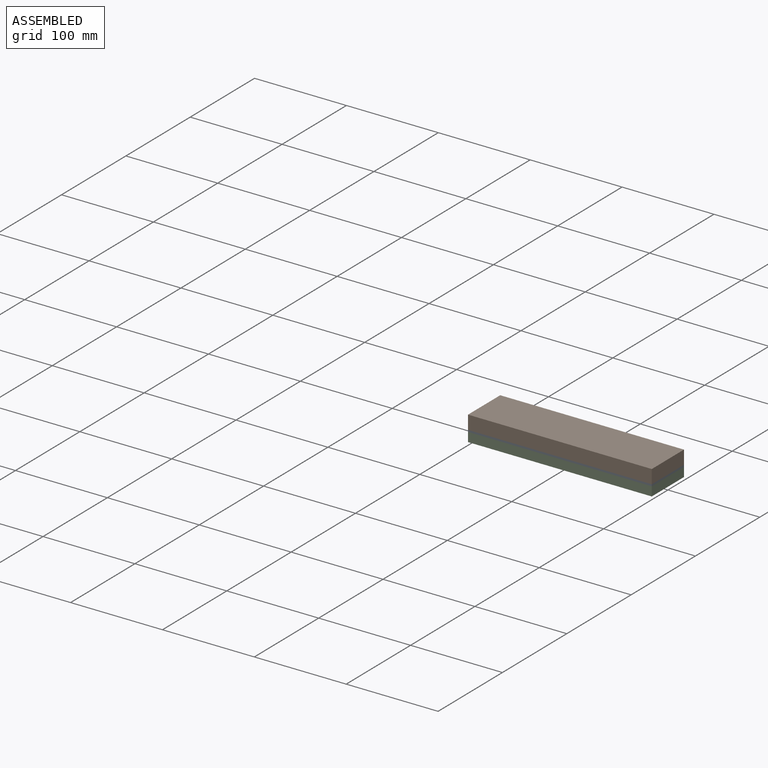
[diagram: assembled view]
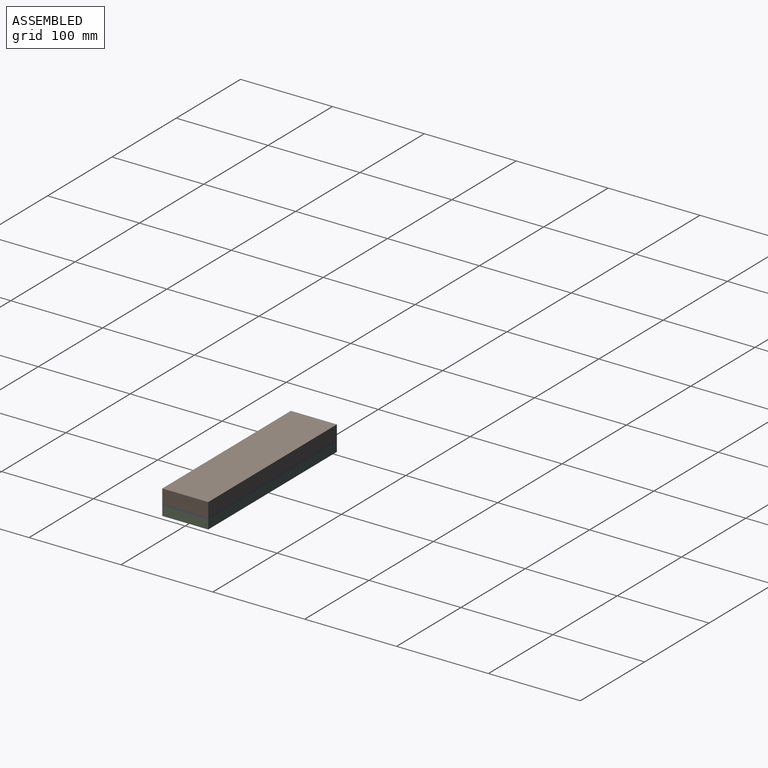
[diagram: assembled view, second angle]
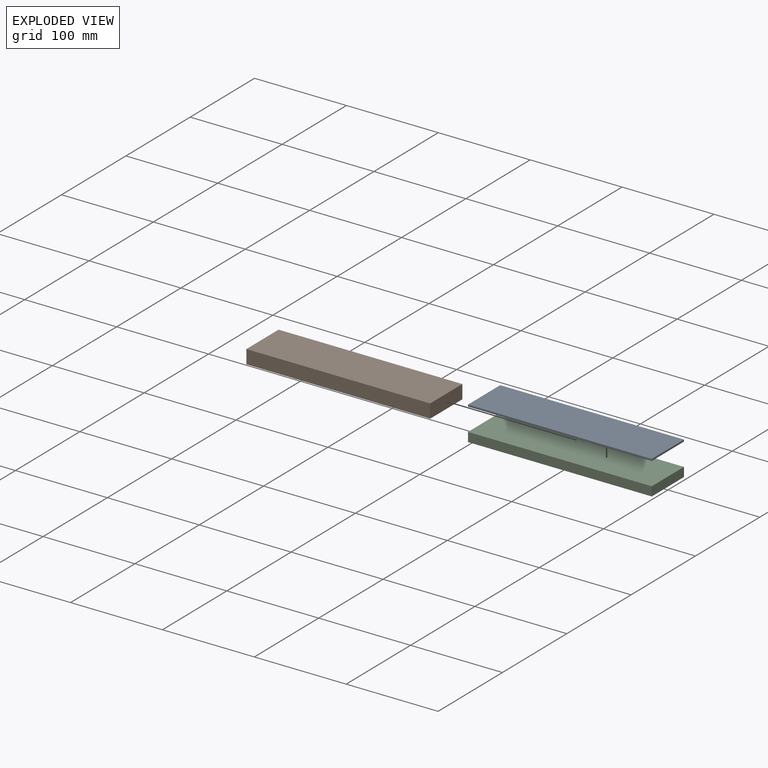
[diagram: exploded view]
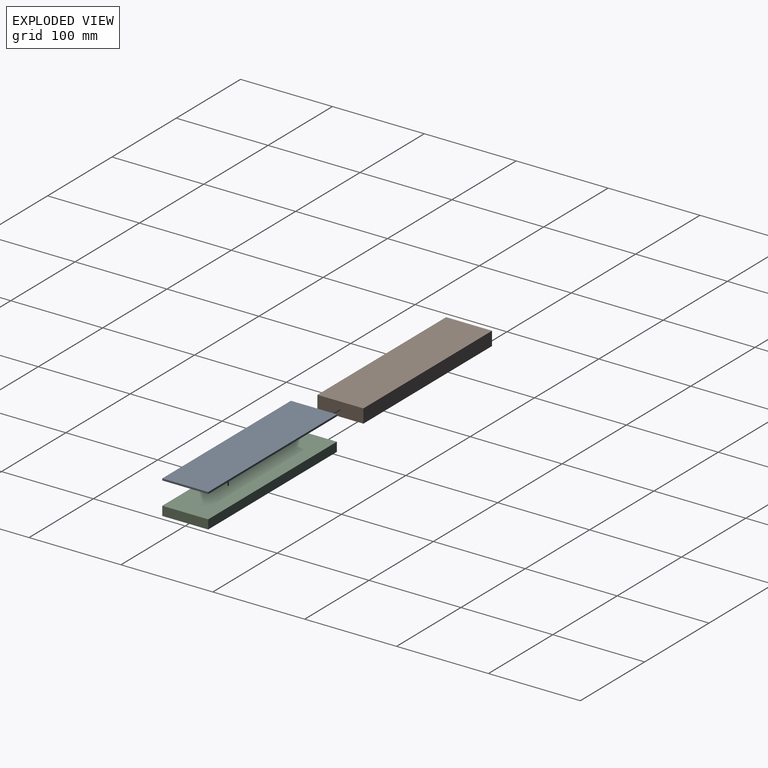
[diagram: exploded view, second angle]
FCSTD DOCUMENT  (FreeCAD 1.0R39109 (Git))
Label: HeatExchanger
License: All rights reserved
LicenseURL: https://en.wikipedia.org/wiki/All_rights_reserved
objects: PartDesign::Body×7, App::Part×7, PartDesign::SubShapeBinder×6, Surface::Filling×4, PartDesign::Pad×3, Sketcher::SketchObject×2, Assembly::JointGroup×1, Assembly::AssemblyObject×1
note: 30 computed .brp shape members not serialized (recipe doc carries the construction recipe); baked Part::Feature solids carry a one-line shape summary decoded from their .brp

FEATURE [Sketcher::SketchObject] Sketch
  ArcFitTolerance = 1e-06
  AttachmentSupport = -> [YZ_Plane002]
  FullyConstrained = true
  MakeInternals = false
  MapMode = 5
  Placement = pos=(0,0,0) rot=(0.57735,0.57735,0.57735;2.0944rad)
  sketch-geometry (5):
    g0: LineSegment StartX=-25 StartY=-1 StartZ=0 EndX=25 EndY=-1 EndZ=0
    g1: LineSegment StartX=25 StartY=-1 StartZ=0 EndX=25 EndY=1 EndZ=0
    g2: LineSegment StartX=25 StartY=1 StartZ=0 EndX=-25 EndY=1 EndZ=0
    g3: LineSegment StartX=-25 StartY=1 StartZ=0 EndX=-25 EndY=-1 EndZ=0
    g4: GeomPoint [constr] X=0 Y=1e-16 Z=0
  constraints (12):
    c: Coincident(g0,g1)
    c: Coincident(g1,g2)
    c: Coincident(g2,g3)
    c: Coincident(g3,g0)
    c: Horizontal(g0)
    c: Horizontal(g2)
    c: Vertical(g1)
    c: Vertical(g3)
    c: Symmetric(g2,g0,g4)
    c: Coincident(g4,g-1)
    c: DistanceY(g3,g3) = 2
    c: DistanceX(g2,g2) = 50  'Width'
FEATURE [PartDesign::Pad] Pad
  Direction = (1,0,0)
  Length = 200
  Length2 = 10
  Placement = pos=(0,0,0) rot=(1,1,1;2.0944rad)
  Profile = -> Sketch
  ReferenceAxis = -> Sketch [N_Axis]
  Refine = true
  Suppressed = false
  Type = 0
FEATURE [PartDesign::Body] Body  label="skin001"
  AllowCompound = false
  Group = -> [Sketch,Pad]
  Origin = -> Origin002
  Tip = -> Pad
FEATURE [App::Part] Part  label="skin"
  Group = -> [Body]
  Origin = -> Origin001
FEATURE [PartDesign::SubShapeBinder] Binder
  BindCopyOnChange = 0
  BindMode = 0
  ClaimChildren = false
  Context = -> Assembly [Part001.Body001.Binder.]
  Fuse = false
  MakeFace = true
  OffsetFill = false
  OffsetIntersection = false
  OffsetJoinType = 0
  OffsetOpenResult = false
  PartialLoad = false
  Refine = true
  Relative = true
  Support = -> [Part[Body.Pad.Face3]]
  _Version = 2
FEATURE [PartDesign::Pad] Pad001
  Direction = (0,2e-16,1)
  Length = 15
  Length2 = 10
  Profile = -> Binder
  Refine = true
  Suppressed = false
  Type = 0
FEATURE [PartDesign::Body] Body001  label="Water001"
  AllowCompound = false
  Group = -> [Binder,Pad001]
  Origin = -> Origin004
  Tip = -> Pad001
FEATURE [App::Part] Part001  label="Water"
  Group = -> [Body001]
  Origin = -> Origin003
FEATURE [PartDesign::SubShapeBinder] Binder001
  BindCopyOnChange = 0
  BindMode = 0
  ClaimChildren = false
  Context = -> Assembly [Part002.Body002.Binder001.]
  Fuse = false
  MakeFace = true
  OffsetFill = false
  OffsetIntersection = false
  OffsetJoinType = 0
  OffsetOpenResult = false
  PartialLoad = false
  Refine = true
  Relative = true
  Support = -> [Part[Body.Pad.Face1]]
  _Version = 2
FEATURE [PartDesign::Pad] Pad002
  Direction = (0,-2e-16,-1)
  Length = 10
  Length2 = 10
  Profile = -> Binder001
  Refine = true
  Suppressed = false
  Type = 0
FEATURE [PartDesign::Body] Body002  label="Oil001"
  AllowCompound = false
  Group = -> [Binder001,Pad002]
  Origin = -> Origin005
  Tip = -> Pad002
FEATURE [App::Part] Part002  label="Oil"
  Group = -> [Body002]
  Origin = -> Origin
FEATURE [PartDesign::SubShapeBinder] Binder002
  BindCopyOnChange = 0
  BindMode = 0
  ClaimChildren = false
  Context = -> Assembly [Part003.Body003.Binder002.]
  Fuse = false
  MakeFace = true
  OffsetFill = false
  OffsetIntersection = false
  OffsetJoinType = 0
  OffsetOpenResult = false
  PartialLoad = false
  Refine = true
  Relative = true
  Support = -> [Part001[Body001.Pad001.Face3]]
  _Version = 2
FEATURE [Assembly::JointGroup] Joints
FEATURE [Sketcher::SketchObject] Sketch001
  ArcFitTolerance = 1e-06
  AttachmentSupport = -> [YZ_Plane007]
  ExternalGeometry = -> [Binder002]
  FullyConstrained = true
  MakeInternals = false
  MapMode = 5
  Placement = pos=(0,0,0) rot=(0.57735,0.57735,0.57735;2.0944rad)
  sketch-geometry (4):
    g0: LineSegment StartX=-25 StartY=16 StartZ=0 EndX=-25 EndY=1 EndZ=0
    g1: LineSegment StartX=-25 StartY=1 StartZ=0 EndX=25 EndY=1 EndZ=0
    g2: LineSegment StartX=25 StartY=1 StartZ=0 EndX=25 EndY=16 EndZ=0
    g3: LineSegment StartX=25 StartY=16 StartZ=0 EndX=-25 EndY=16 EndZ=0
  constraints (11):
    c: Coincident(g0,g1)
    c: Coincident(g1,g2)
    c: Coincident(g2,g3)
    c: Coincident(g3,g0)
    c: Vertical(g0)
    c: Vertical(g2)
    c: Horizontal(g1)
    c: Horizontal(g3)
    c: PointOnObject(g0,g-3)
    c: PointOnObject(g1,g-6)
    c: Coincident(g2,g-5)
FEATURE [PartDesign::Body] Body003
  AllowCompound = false
  Group = -> [Binder002,Sketch001]
  Origin = -> Origin007
FEATURE [Surface::Filling] Surface  label="WaterIn001"
  Anisotropy = false
  BoundaryEdges = -> [Binder002]
  BoundaryOrder = [0,0,0,0]
  Degree = 3
  InitialFace = -> Binder002 [Face1]
  Iterations = 2
  MaximumDegree = 8
  MaximumSegments = 9
  PointsOnCurve = 15
  TolAngular = 0.01
  TolCurvature = 0.1
  Tolerance2d = 1e-05
  Tolerance3d = 0.0001
FEATURE [App::Part] Part003  label="WaterIn"
  Group = -> [Body003,Surface]
  Origin = -> Origin006
FEATURE [PartDesign::SubShapeBinder] Binder003
  BindCopyOnChange = 0
  BindMode = 0
  ClaimChildren = false
  Context = -> Assembly [Part004.Body004.Binder003.]
  Fuse = false
  MakeFace = true
  OffsetFill = false
  OffsetIntersection = false
  OffsetJoinType = 0
  OffsetOpenResult = false
  PartialLoad = false
  Refine = true
  Relative = true
  Support = -> [Part001[Body001.Pad001.Face4]]
  _Version = 2
FEATURE [PartDesign::Body] Body004  label="Body"
  AllowCompound = false
  Group = -> [Binder003]
  Origin = -> Origin010
FEATURE [Surface::Filling] Surface001  label="WaterOut001"
  Anisotropy = false
  BoundaryEdges = -> [Binder003]
  BoundaryOrder = [0,0,0,0]
  Degree = 3
  InitialFace = -> Binder003 [Face1]
  Iterations = 2
  MaximumDegree = 8
  MaximumSegments = 9
  PointsOnCurve = 15
  TolAngular = 0.01
  TolCurvature = 0.1
  Tolerance2d = 1e-05
  Tolerance3d = 0.0001
FEATURE [App::Part] Part004  label="WaterOut"
  Group = -> [Body004,Surface001]
  Origin = -> Origin009
FEATURE [PartDesign::SubShapeBinder] Binder004
  BindCopyOnChange = 0
  BindMode = 0
  ClaimChildren = false
  Context = -> Assembly [Part005.Body005.Binder004.]
  Fuse = false
  MakeFace = true
  OffsetFill = false
  OffsetIntersection = false
  OffsetJoinType = 0
  OffsetOpenResult = false
  PartialLoad = false
  Refine = true
  Relative = true
  Support = -> [Part002[Body002.Pad002.Face4]]
  _Version = 2
FEATURE [PartDesign::Body] Body005
  AllowCompound = false
  Group = -> [Binder004]
  Origin = -> Origin012
FEATURE [PartDesign::SubShapeBinder] Binder005
  BindCopyOnChange = 0
  BindMode = 0
  ClaimChildren = false
  Context = -> Assembly [Part006.Body006.Binder005.]
  Fuse = false
  MakeFace = true
  OffsetFill = false
  OffsetIntersection = false
  OffsetJoinType = 0
  OffsetOpenResult = false
  PartialLoad = false
  Refine = true
  Relative = true
  Support = -> [Part002[Body002.Pad002.Face3]]
  _Version = 2
FEATURE [PartDesign::Body] Body006
  AllowCompound = false
  Group = -> [Binder005]
  Origin = -> Origin014
FEATURE [Surface::Filling] Surface002  label="OilIn001"
  Anisotropy = false
  BoundaryEdges = -> [Binder004]
  BoundaryOrder = [0,0,0,0]
  Degree = 3
  InitialFace = -> Binder004 [Face1]
  Iterations = 2
  MaximumDegree = 8
  MaximumSegments = 9
  PointsOnCurve = 15
  TolAngular = 0.01
  TolCurvature = 0.1
  Tolerance2d = 1e-05
  Tolerance3d = 0.0001
FEATURE [App::Part] Part005  label="OilIn"
  Group = -> [Body005,Surface002]
  Origin = -> Origin011
FEATURE [Surface::Filling] Surface003  label="OilOut001"
  Anisotropy = false
  BoundaryEdges = -> [Binder005]
  BoundaryOrder = [0,0,0,0]
  Degree = 3
  InitialFace = -> Binder005 [Face1]
  Iterations = 2
  MaximumDegree = 8
  MaximumSegments = 9
  PointsOnCurve = 15
  TolAngular = 0.01
  TolCurvature = 0.1
  Tolerance2d = 1e-05
  Tolerance3d = 0.0001
FEATURE [App::Part] Part006  label="OilOut"
  Group = -> [Body006,Surface003]
  Origin = -> Origin013
FEATURE [Assembly::AssemblyObject] Assembly
  Group = -> [Joints,Part,Part001,Part002,Part003,Part004,Part005,Part006]
  Origin = -> Origin008
  Type = Assembly
